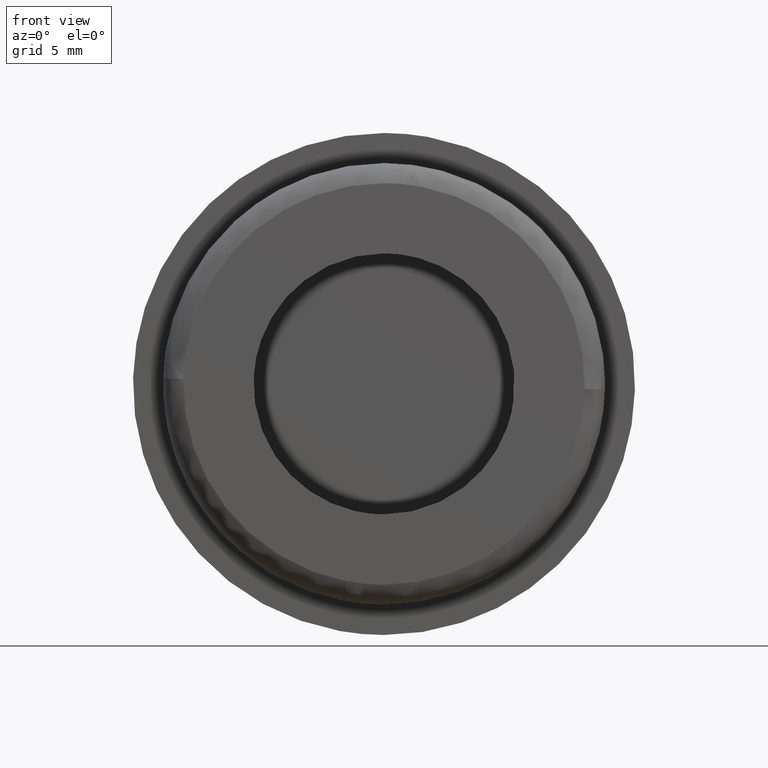
[diagram: clean part render]
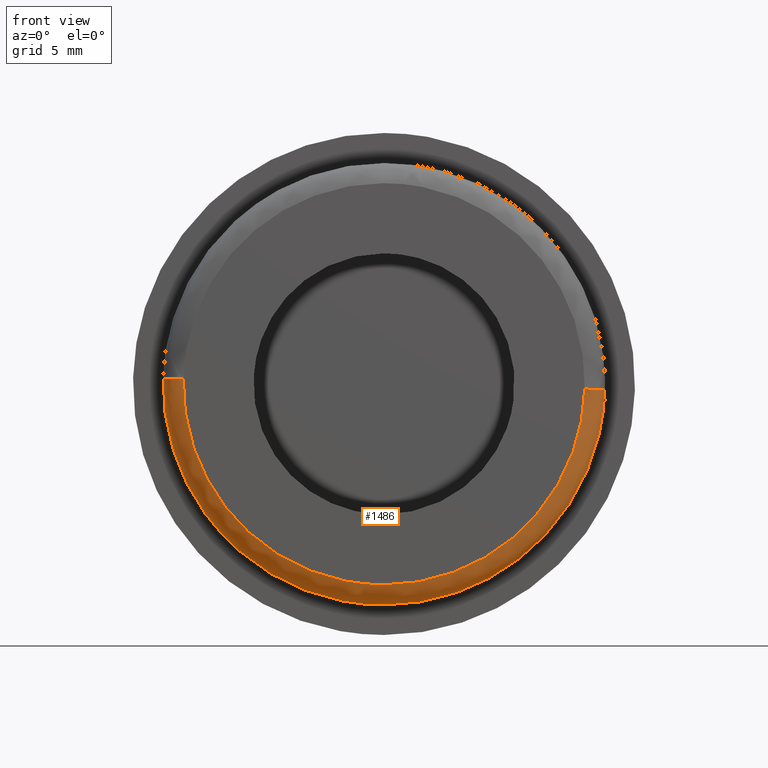
[diagram: same view with one face highlighted and labeled with its STEP entity id]
A machine part, front view. The second image highlights one B-rep face of the part: STEP entity #1486.
In plain terms, the highlighted face is a freeform B-spline surface patch.
Its self-contained STEP definition (entity closure, byte-faithful):
#941=CARTESIAN_POINT('',(10.996524082747710,0.999999999889432,-0.276428999624784));
#942=VERTEX_POINT('',#941);
#958=CARTESIAN_POINT('',(0.0,1.000000000000012,-10.999995999999999));
#959=VERTEX_POINT('',#958);
#960=CARTESIAN_POINT('',(0.0,1.000000000000012,-10.999995999999999));
#961=CARTESIAN_POINT('',(10.726954687615260,1.000000000000012,-10.999995999999998));
#962=CARTESIAN_POINT('',(10.996524082747712,0.999999999889432,-0.276428999624784));
#970=(BOUNDED_CURVE()B_SPLINE_CURVE(2,(#960,#961,#962),.UNSPECIFIED.,.F.,.U.)B_SPLINE_CURVE_WITH_KNOTS((3,3),(0.0,0.245579891769545),.UNSPECIFIED.)CURVE()GEOMETRIC_REPRESENTATION_ITEM()RATIONAL_B_SPLINE_CURVE((1.0,0.712285260095035,0.989826157680982))REPRESENTATION_ITEM(''));
#971=EDGE_CURVE('',#959,#942,#970,.T.);
#973=CARTESIAN_POINT('',(-7.197734559376409,1.000000000000012,-8.318205331676833));
#974=VERTEX_POINT('',#973);
#975=CARTESIAN_POINT('',(-7.197734559376409,1.000000000000012,-8.318205331676833));
#976=CARTESIAN_POINT('',(-4.098468733328235,1.000000000000012,-10.999995999999999));
#977=CARTESIAN_POINT('',(0.0,1.000000000000012,-10.999995999999999));
#985=(BOUNDED_CURVE()B_SPLINE_CURVE(2,(#975,#976,#977),.UNSPECIFIED.,.F.,.U.)B_SPLINE_CURVE_WITH_KNOTS((3,3),(0.885882132988790,1.0),.UNSPECIFIED.)CURVE()GEOMETRIC_REPRESENTATION_ITEM()RATIONAL_B_SPLINE_CURVE((0.854663299542762,0.866302602427844,1.0))REPRESENTATION_ITEM(''));
#986=EDGE_CURVE('',#974,#959,#985,.T.);
#1030=CARTESIAN_POINT('',(-10.996524082747710,0.999999999889432,0.276432999624792));
#1031=VERTEX_POINT('',#1030);
#1032=CARTESIAN_POINT('',(-10.996524082747715,0.999999999889432,0.276432999624792));
#1033=CARTESIAN_POINT('',(-10.999998000000000,1.000000000000012,0.138239328231385));
#1034=CARTESIAN_POINT('',(-10.999998000000000,1.000000000000012,0.000002000000002));
#1035=CARTESIAN_POINT('',(-10.999998000000001,1.000000000000012,-5.028111746328487));
#1036=CARTESIAN_POINT('',(-7.197734559376409,1.000000000000012,-8.318205331676833));
#1044=(BOUNDED_CURVE()B_SPLINE_CURVE(2,(#1032,#1033,#1034,#1035,#1036),.UNSPECIFIED.,.F.,.U.)B_SPLINE_CURVE_WITH_KNOTS((3,2,3),(0.745579891769544,0.750000000000000,0.885882132988790),.UNSPECIFIED.)CURVE()GEOMETRIC_REPRESENTATION_ITEM()RATIONAL_B_SPLINE_CURVE((0.989826157680981,0.994821521091512,1.0,0.840804178758703,0.854663299542762))REPRESENTATION_ITEM(''));
#1045=EDGE_CURVE('',#1031,#974,#1044,.T.);
#1398=CARTESIAN_POINT('',(-10.994091157678255,1.069724202739011,0.276371840662664));
#1399=CARTESIAN_POINT('',(-11.270460998340916,1.069724202739011,-10.717719317015588));
#1400=CARTESIAN_POINT('',(-0.276369840662665,1.069724202739011,-10.994089157678253));
#1401=CARTESIAN_POINT('',(10.717721317015588,1.069724202739011,-11.270458998340919));
#1402=CARTESIAN_POINT('',(10.994091157678255,1.069724202739011,-0.276367840662663));
#1403=CARTESIAN_POINT('',(-11.074238821486173,-0.077336124558961,0.278386595384850));
#1404=CARTESIAN_POINT('',(-11.352623416871017,-0.077336124558961,-10.795852226101317));
#1405=CARTESIAN_POINT('',(-0.278384595384851,-0.077336124558961,-11.074236821486169));
#1406=CARTESIAN_POINT('',(10.795854226101316,-0.077336124558961,-11.352621416871019));
#1407=CARTESIAN_POINT('',(11.074238821486173,-0.077336124558961,-0.278382595384849));
#1408=CARTESIAN_POINT('',(-9.927510840825413,0.002407675890664,0.249560108069681));
#1409=CARTESIAN_POINT('',(-10.177068948895091,0.002407675890664,-9.677950732755729));
#1410=CARTESIAN_POINT('',(-0.249558108069681,0.002407675890664,-9.927508840825407));
#1411=CARTESIAN_POINT('',(9.677952732755728,0.002407675890664,-10.177066948895089));
#1412=CARTESIAN_POINT('',(9.927510840825413,0.002407675890664,-0.249556108069679));
#1420=(BOUNDED_SURFACE()B_SPLINE_SURFACE(2,2,((#1398,#1403,#1408),(#1399,#1404,#1409),(#1400,#1405,#1410),(#1401,#1406,#1411),(#1402,#1407,#1412)),.UNSPECIFIED.,.F.,.F.,.U.)B_SPLINE_SURFACE_WITH_KNOTS((3,2,3),(3,3),(0.0,18.221361155031438,36.442722310062877),(0.0,1.822370807356341),.UNSPECIFIED.)GEOMETRIC_REPRESENTATION_ITEM()RATIONAL_B_SPLINE_SURFACE(((0.910892948894842,0.599412851380845,0.915966781714445),(0.644098581098554,0.423848891941760,0.647686322691902),(0.910892948894842,0.599412851380845,0.915966781714445),(0.644098581098554,0.423848891941760,0.647686322691902),(0.910892948894842,0.599412851380845,0.915966781714445)))REPRESENTATION_ITEM('')SURFACE());
#1421=CARTESIAN_POINT('',(-9.996839894024996,1.229141E-014,0.251302904220832));
#1422=VERTEX_POINT('',#1421);
#1423=CARTESIAN_POINT('',(0.0,1.221245E-014,-9.999995999999998));
#1424=VERTEX_POINT('',#1423);
#1425=CARTESIAN_POINT('',(-9.996839894024996,1.229141E-014,0.251302904220832));
#1426=CARTESIAN_POINT('',(-9.999998000000000,1.221245E-014,0.125672296133287));
#1427=CARTESIAN_POINT('',(-9.999998000000000,1.221245E-014,0.000002000000002));
#1428=CARTESIAN_POINT('',(-9.999998000000000,1.221245E-014,-9.999995999999998));
#1429=CARTESIAN_POINT('',(0.0,1.221245E-014,-9.999995999999998));
#1437=(BOUNDED_CURVE()B_SPLINE_CURVE(2,(#1425,#1426,#1427,#1428,#1429),.UNSPECIFIED.,.F.,.U.)B_SPLINE_CURVE_WITH_KNOTS((3,2,3),(0.745579891768633,0.750000000000000,1.0),.UNSPECIFIED.)CURVE()GEOMETRIC_REPRESENTATION_ITEM()RATIONAL_B_SPLINE_CURVE((0.989826157678922,0.994821521090445,1.0,0.707106781186548,1.0))REPRESENTATION_ITEM(''));
#1438=EDGE_CURVE('',#1422,#1424,#1437,.T.);
#1439=ORIENTED_EDGE('',*,*,#1438,.F.);
#1440=CARTESIAN_POINT('',(-10.996524082747712,0.999999999889432,0.276432999624792));
#1441=CARTESIAN_POINT('',(-10.996524082526827,1.122806E-009,0.276432999610966));
#1442=CARTESIAN_POINT('',(-9.996839894024996,1.229141E-014,0.251302904220832));
#1450=(BOUNDED_CURVE()B_SPLINE_CURVE(2,(#1440,#1441,#1442),.UNSPECIFIED.,.F.,.U.)B_SPLINE_CURVE_WITH_KNOTS((3,3),(-1.723441281757064,-0.263586880089881),.UNSPECIFIED.)CURVE()GEOMETRIC_REPRESENTATION_ITEM()RATIONAL_B_SPLINE_CURVE((0.883897567058411,0.626638727483165,0.888510408645648))REPRESENTATION_ITEM(''));
#1451=EDGE_CURVE('',#1031,#1422,#1450,.T.);
#1452=ORIENTED_EDGE('',*,*,#1451,.F.);
#1453=ORIENTED_EDGE('',*,*,#1045,.T.);
#1454=ORIENTED_EDGE('',*,*,#986,.T.);
#1455=ORIENTED_EDGE('',*,*,#971,.T.);
#1456=CARTESIAN_POINT('',(9.996839894024994,1.227580E-014,-0.251298904220826));
#1457=VERTEX_POINT('',#1456);
#1458=CARTESIAN_POINT('',(10.996524082747712,0.999999999889432,-0.276428999624784));
#1459=CARTESIAN_POINT('',(10.996524082526825,1.122803E-009,-0.276428999610961));
#1460=CARTESIAN_POINT('',(9.996839894024994,1.227580E-014,-0.251298904220826));
#1468=(BOUNDED_CURVE()B_SPLINE_CURVE(2,(#1458,#1459,#1460),.UNSPECIFIED.,.F.,.U.)B_SPLINE_CURVE_WITH_KNOTS((3,3),(-1.723441281757064,-0.263586880089877),.UNSPECIFIED.)CURVE()GEOMETRIC_REPRESENTATION_ITEM()RATIONAL_B_SPLINE_CURVE((0.883897567058411,0.626638727483164,0.888510408645649))REPRESENTATION_ITEM(''));
#1469=EDGE_CURVE('',#942,#1457,#1468,.T.);
#1470=ORIENTED_EDGE('',*,*,#1469,.T.);
#1471=CARTESIAN_POINT('',(0.0,1.221245E-014,-9.999995999999998));
#1472=CARTESIAN_POINT('',(9.751776811385291,1.221245E-014,-9.999995999999998));
#1473=CARTESIAN_POINT('',(9.996839894024994,1.227580E-014,-0.251298904220826));
#1481=(BOUNDED_CURVE()B_SPLINE_CURVE(2,(#1471,#1472,#1473),.UNSPECIFIED.,.F.,.U.)B_SPLINE_CURVE_WITH_KNOTS((3,3),(0.0,0.245579891768634),.UNSPECIFIED.)CURVE()GEOMETRIC_REPRESENTATION_ITEM()RATIONAL_B_SPLINE_CURVE((1.0,0.712285260096103,0.989826157678923))REPRESENTATION_ITEM(''));
#1482=EDGE_CURVE('',#1424,#1457,#1481,.T.);
#1483=ORIENTED_EDGE('',*,*,#1482,.F.);
#1484=EDGE_LOOP('',(#1439,#1452,#1453,#1454,#1455,#1470,#1483));
#1485=FACE_OUTER_BOUND('',#1484,.T.);
#1486=ADVANCED_FACE('',(#1485),#1420,.T.);